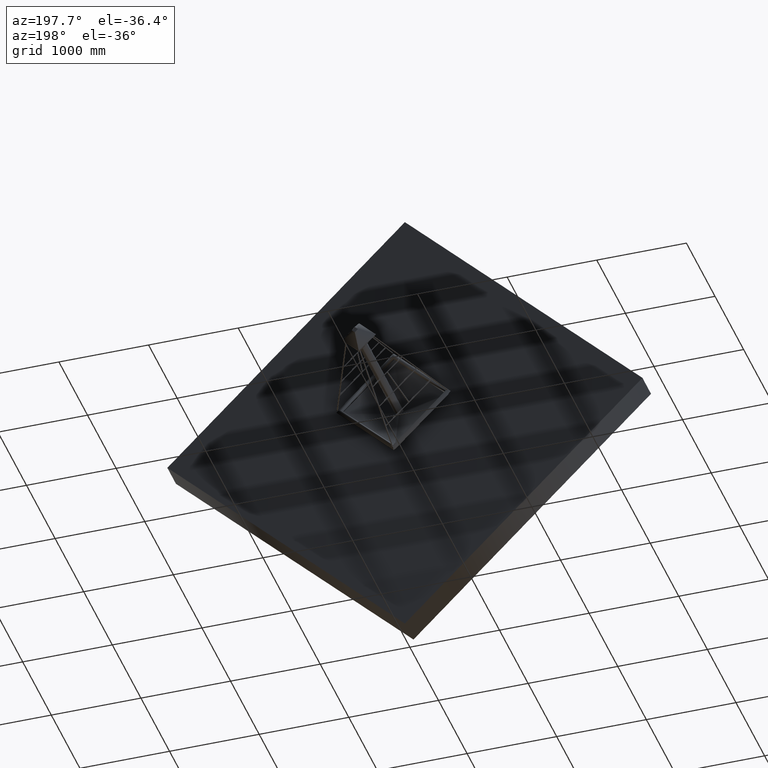
[diagram: clean part render]
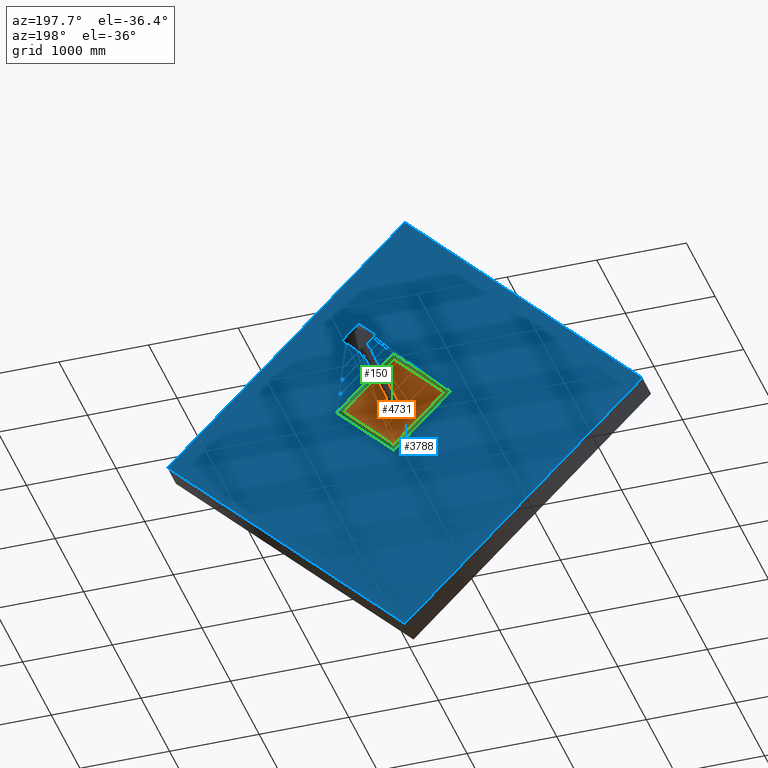
[diagram: same view with three faces highlighted in distinct colors, each labeled with its STEP entity id]
A machine part, auxiliary view with three faces highlighted in distinct colors.
Their STEP definitions:

[orange] entity #4731 — the highlighted toroidal blend (fillet) surface has major radius 50.916 mm and minor (blend) radius 1062.02 mm.
#45 = DIRECTION ( 'NONE',  ( 0.0000000000000000000, 0.0000000000000000000, -1.000000000000000000 ) ) ;
#630 = TOROIDAL_SURFACE ( 'NONE', #5896, 50.91600185369438200, 1062.016314886577400 ) ;
#972 = CARTESIAN_POINT ( 'NONE',  ( 0.0000000000000000000, 216.5451871990886700, -52.80065167405452100 ) ) ;
#1328 = AXIS2_PLACEMENT_3D ( 'NONE', #2197, #5744, #6258 ) ;
#2132 = FACE_OUTER_BOUND ( 'NONE', #2428, .T. ) ;
#2197 = CARTESIAN_POINT ( 'NONE',  ( 0.0000000000000000000, 363.3570552008787900, 0.0000000000000000000 ) ) ;
#2354 = DIRECTION ( 'NONE',  ( 0.0000000000000000000, 0.0000000000000000000, -1.000000000000000000 ) ) ;
#2428 = EDGE_LOOP ( 'NONE', ( #5136 ) ) ;
#2561 = EDGE_CURVE ( 'NONE', #6405, #6405, #4675, .T. ) ;
#2609 = AXIS2_PLACEMENT_3D ( 'NONE', #3436, #3961, #45 ) ;
#2674 = EDGE_LOOP ( 'NONE', ( #3114 ) ) ;
#3049 = CARTESIAN_POINT ( 'NONE',  ( 0.0000000000000000000, 363.3570552008787900, -589.6947452920695700 ) ) ;
#3114 = ORIENTED_EDGE ( 'NONE', *, *, #2561, .F. ) ;
#3436 = CARTESIAN_POINT ( 'NONE',  ( 0.0000000000000000000, 216.5451871990886700, 0.0000000000000000000 ) ) ;
#3651 = CIRCLE ( 'NONE', #2609, 52.80065167405452100 ) ;
#3961 = DIRECTION ( 'NONE',  ( -0.0000000000000000000, -1.000000000000000000, -0.0000000000000000000 ) ) ;
#4083 = EDGE_CURVE ( 'NONE', #4747, #4747, #3651, .T. ) ;
#4241 = DIRECTION ( 'NONE',  ( -0.0000000000000000000, -1.000000000000000000, -0.0000000000000000000 ) ) ;
#4372 = CARTESIAN_POINT ( 'NONE',  ( 0.0000000000000000000, 1278.559829838407700, 0.0000000000000000000 ) ) ;
#4675 = CIRCLE ( 'NONE', #1328, 589.6947452920695700 ) ;
#4731 = ADVANCED_FACE ( 'NONE', ( #2132, #5848 ), #630, .F. ) ;
#4747 = VERTEX_POINT ( 'NONE', #972 ) ;
#5136 = ORIENTED_EDGE ( 'NONE', *, *, #4083, .T. ) ;
#5744 = DIRECTION ( 'NONE',  ( -0.0000000000000000000, -1.000000000000000000, -0.0000000000000000000 ) ) ;
#5848 = FACE_OUTER_BOUND ( 'NONE', #2674, .T. ) ;
#5896 = AXIS2_PLACEMENT_3D ( 'NONE', #4372, #4241, #2354 ) ;
#6258 = DIRECTION ( 'NONE',  ( 0.0000000000000000000, 0.0000000000000000000, -1.000000000000000000 ) ) ;
#6405 = VERTEX_POINT ( 'NONE', #3049 ) ;

[blue] entity #3788 — the highlighted planar face has unit normal (0, 1, 0).
#901 = AXIS2_PLACEMENT_3D ( 'NONE', #5738, #2715, #3181 ) ;
#1056 = ORIENTED_EDGE ( 'NONE', *, *, #3056, .T. ) ;
#2214 = AXIS2_PLACEMENT_3D ( 'NONE', #5608, #4113, #2634 ) ;
#2353 = VERTEX_POINT ( 'NONE', #2592 ) ;
#2592 = CARTESIAN_POINT ( 'NONE',  ( 0.0000000000000000000, 300.0000000000000000, 2650.000000000000500 ) ) ;
#2634 = DIRECTION ( 'NONE',  ( 0.0000000000000000000, 0.0000000000000000000, 1.000000000000000000 ) ) ;
#2715 = DIRECTION ( 'NONE',  ( 0.0000000000000000000, 1.000000000000000000, 0.0000000000000000000 ) ) ;
#3056 = EDGE_CURVE ( 'NONE', #2353, #2353, #6322, .T. ) ;
#3181 = DIRECTION ( 'NONE',  ( 0.0000000000000000000, -0.0000000000000000000, 1.000000000000000000 ) ) ;
#3788 = ADVANCED_FACE ( 'NONE', ( #4287 ), #5226, .T. ) ;
#4113 = DIRECTION ( 'NONE',  ( 0.0000000000000000000, 1.000000000000000000, 0.0000000000000000000 ) ) ;
#4287 = FACE_OUTER_BOUND ( 'NONE', #5298, .T. ) ;
#5226 = PLANE ( 'NONE',  #901 ) ;
#5298 = EDGE_LOOP ( 'NONE', ( #1056 ) ) ;
#5608 = CARTESIAN_POINT ( 'NONE',  ( 0.0000000000000000000, 300.0000000000000000, 0.0000000000000000000 ) ) ;
#5738 = CARTESIAN_POINT ( 'NONE',  ( 0.0000000000000000000, 300.0000000000000000, 0.0000000000000000000 ) ) ;
#6322 = CIRCLE ( 'NONE', #2214, 2650.000000000000500 ) ;

[green] entity #150 — the highlighted toroidal blend (fillet) surface has major radius 600 mm and minor (blend) radius 37.5 mm.
#150 = ADVANCED_FACE ( 'NONE', ( ), #2015, .T. ) ;
#453 = DIRECTION ( 'NONE',  ( 0.0000000000000000000, 0.0000000000000000000, -1.000000000000000000 ) ) ;
#1482 = AXIS2_PLACEMENT_3D ( 'NONE', #1991, #1973, #453 ) ;
#1973 = DIRECTION ( 'NONE',  ( -0.0000000000000000000, -1.000000000000000000, -0.0000000000000000000 ) ) ;
#1991 = CARTESIAN_POINT ( 'NONE',  ( 0.0000000000000000000, 400.0000000000000000, 0.0000000000000000000 ) ) ;
#2015 = TOROIDAL_SURFACE ( 'NONE', #1482, 600.0000000000000000, 37.50000000000000700 ) ;